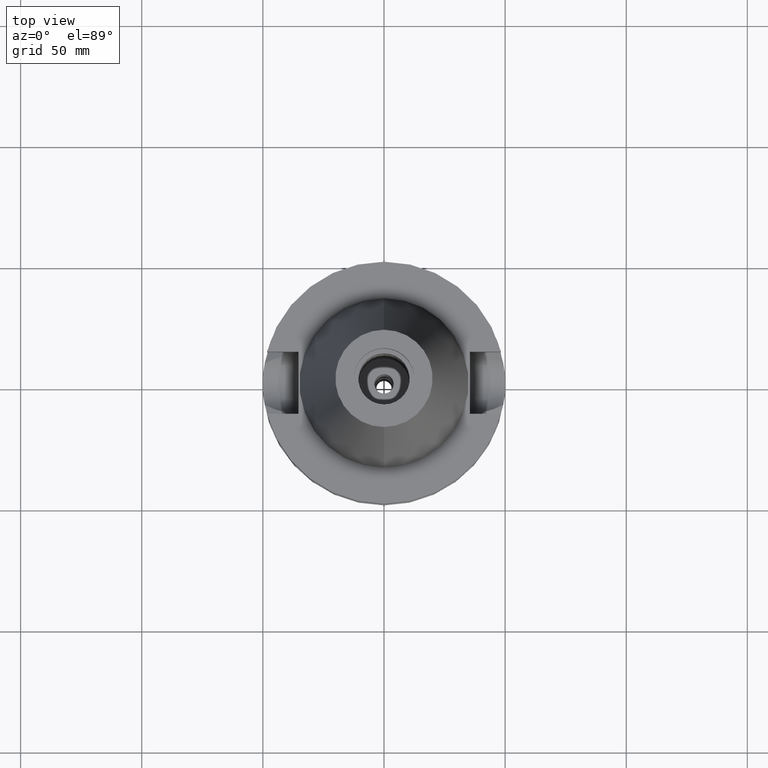
[diagram: clean part render]
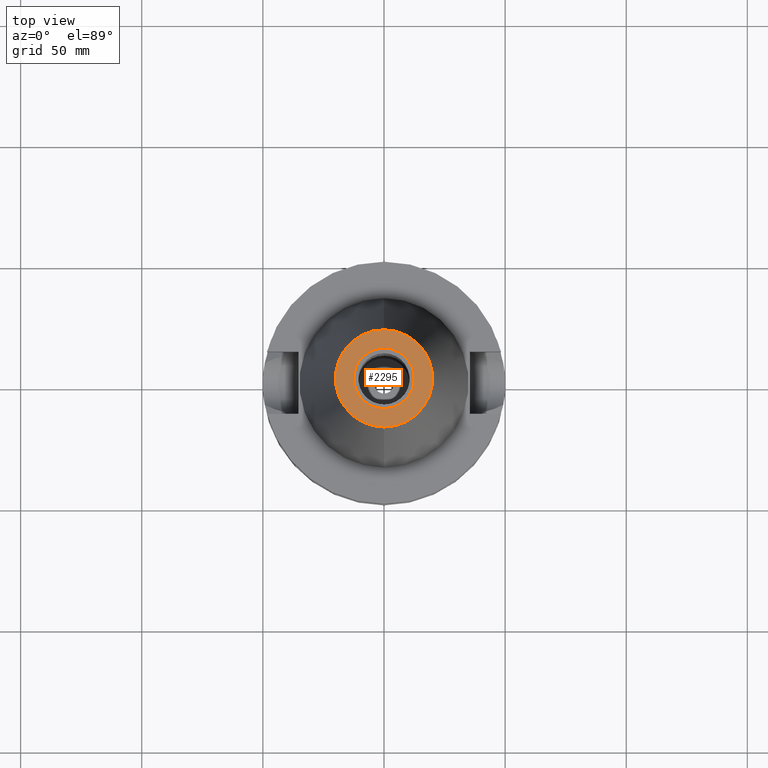
[diagram: same view with one face highlighted and labeled with its STEP entity id]
A machine part, top view. The second image highlights one B-rep face of the part: STEP entity #2295.
In plain terms, the highlighted planar face has unit normal (0, 0, -1).
Its self-contained STEP definition (entity closure, byte-faithful):
#117 = CIRCLE ( 'NONE', #2503, 20.07942971896000017 ) ;
#124 = CIRCLE ( 'NONE', #1556, 20.07942971896000017 ) ;
#131 = VERTEX_POINT ( 'NONE', #2976 ) ;
#142 = VERTEX_POINT ( 'NONE', #682 ) ;
#298 = AXIS2_PLACEMENT_3D ( 'NONE', #891, #1772, #1200 ) ;
#377 = DIRECTION ( 'NONE',  ( 0.0000000000000000000, 0.0000000000000000000, 1.000000000000000000 ) ) ;
#561 = DIRECTION ( 'NONE',  ( 0.0000000000000000000, 0.0000000000000000000, -1.000000000000000000 ) ) ;
#682 = CARTESIAN_POINT ( 'NONE',  ( 0.0000000000000000000, 12.50000000000000000, 101.7999999999999972 ) ) ;
#795 = EDGE_CURVE ( 'NONE', #1790, #2407, #124, .T. ) ;
#810 = EDGE_LOOP ( 'NONE', ( #2851, #1885 ) ) ;
#891 = CARTESIAN_POINT ( 'NONE',  ( 0.0000000000000000000, 2.471337240678999545E-14, 101.7999999999999972 ) ) ;
#897 = CIRCLE ( 'NONE', #3223, 12.50000000000000000 ) ;
#939 = CARTESIAN_POINT ( 'NONE',  ( 0.0000000000000000000, 20.07942971896000017, 101.7999999999999972 ) ) ;
#1200 = DIRECTION ( 'NONE',  ( 0.0000000000000000000, -1.000000000000000000, 0.0000000000000000000 ) ) ;
#1221 = CARTESIAN_POINT ( 'NONE',  ( 0.0000000000000000000, 2.631643506687999657E-14, 101.7999999999999972 ) ) ;
#1320 = CIRCLE ( 'NONE', #3648, 12.50000000000000000 ) ;
#1418 = CARTESIAN_POINT ( 'NONE',  ( 0.0000000000000000000, 1.847992019912999597E-14, 101.7999999999999972 ) ) ;
#1516 = EDGE_CURVE ( 'NONE', #2407, #1790, #117, .T. ) ;
#1525 = DIRECTION ( 'NONE',  ( 0.0000000000000000000, 0.0000000000000000000, -1.000000000000000000 ) ) ;
#1542 = DIRECTION ( 'NONE',  ( 0.0000000000000000000, 1.000000000000000000, 0.0000000000000000000 ) ) ;
#1556 = AXIS2_PLACEMENT_3D ( 'NONE', #2087, #1525, #1542 ) ;
#1772 = DIRECTION ( 'NONE',  ( 0.0000000000000000000, 0.0000000000000000000, -1.000000000000000000 ) ) ;
#1790 = VERTEX_POINT ( 'NONE', #939 ) ;
#1885 = ORIENTED_EDGE ( 'NONE', *, *, #1516, .F. ) ;
#2087 = CARTESIAN_POINT ( 'NONE',  ( 0.0000000000000000000, 1.847992019912999597E-14, 101.7999999999999972 ) ) ;
#2163 = DIRECTION ( 'NONE',  ( 0.0000000000000000000, 0.0000000000000000000, 1.000000000000000000 ) ) ;
#2288 = FACE_BOUND ( 'NONE', #3686, .T. ) ;
#2295 = ADVANCED_FACE ( 'NONE', ( #2575, #2288 ), #2328, .F. ) ;
#2328 = PLANE ( 'NONE',  #298 ) ;
#2390 = EDGE_CURVE ( 'NONE', #131, #142, #897, .T. ) ;
#2407 = VERTEX_POINT ( 'NONE', #3548 ) ;
#2408 = DIRECTION ( 'NONE',  ( 0.0000000000000000000, -1.000000000000000000, 0.0000000000000000000 ) ) ;
#2445 = CARTESIAN_POINT ( 'NONE',  ( 0.0000000000000000000, 2.631643506687999657E-14, 101.7999999999999972 ) ) ;
#2503 = AXIS2_PLACEMENT_3D ( 'NONE', #1418, #561, #2560 ) ;
#2560 = DIRECTION ( 'NONE',  ( 0.0000000000000000000, -1.000000000000000000, 0.0000000000000000000 ) ) ;
#2575 = FACE_OUTER_BOUND ( 'NONE', #810, .T. ) ;
#2851 = ORIENTED_EDGE ( 'NONE', *, *, #795, .F. ) ;
#2976 = CARTESIAN_POINT ( 'NONE',  ( 0.0000000000000000000, -12.50000000000000000, 101.7999999999999972 ) ) ;
#2995 = ORIENTED_EDGE ( 'NONE', *, *, #3132, .F. ) ;
#3061 = ORIENTED_EDGE ( 'NONE', *, *, #2390, .F. ) ;
#3132 = EDGE_CURVE ( 'NONE', #142, #131, #1320, .T. ) ;
#3223 = AXIS2_PLACEMENT_3D ( 'NONE', #2445, #377, #2408 ) ;
#3471 = DIRECTION ( 'NONE',  ( 0.0000000000000000000, 1.000000000000000000, 0.0000000000000000000 ) ) ;
#3548 = CARTESIAN_POINT ( 'NONE',  ( 0.0000000000000000000, -20.07942971896000017, 101.7999999999999972 ) ) ;
#3648 = AXIS2_PLACEMENT_3D ( 'NONE', #1221, #2163, #3471 ) ;
#3686 = EDGE_LOOP ( 'NONE', ( #2995, #3061 ) ) ;